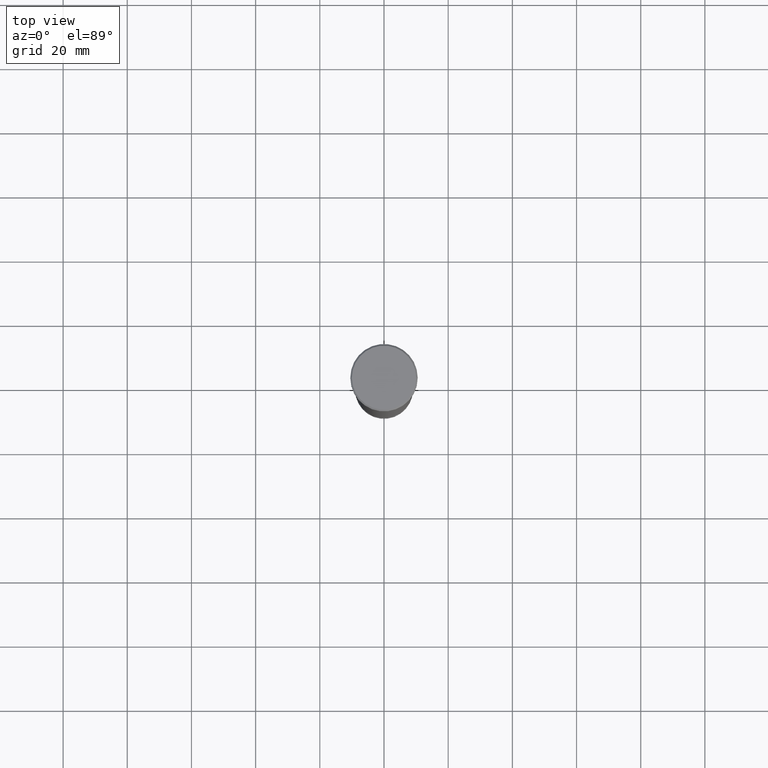
[diagram: clean part render]
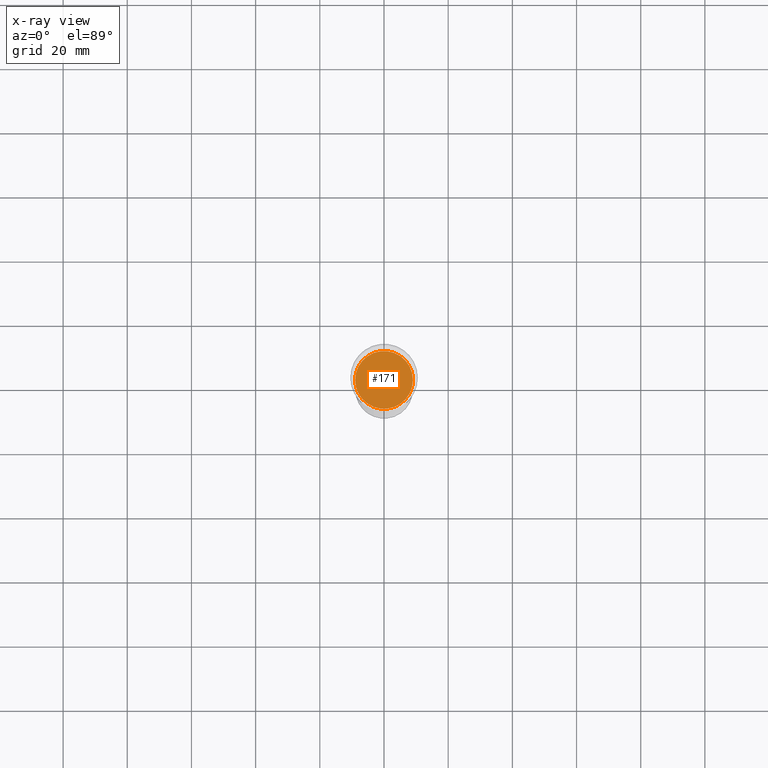
[diagram: x-ray — body ghosted, one internal face saturated and labeled with its STEP entity id]
A machine part, top view, then the same camera in x-ray: the body is ghosted and one INTERNAL B-rep face — a face not visible from any outside direction — is saturated and labeled: STEP entity #171.
In plain terms, the highlighted planar face has unit normal (0, 0, -1).
Its self-contained STEP definition (entity closure, byte-faithful):
#48 = CIRCLE ( 'NONE', #698, 9.000000000000000000 ) ;
#61 = CARTESIAN_POINT ( 'NONE',  ( 0.000000000000000000, 0.000000000000000000, -41.99999999999999289 ) ) ;
#87 = EDGE_LOOP ( 'NONE', ( #927, #334 ) ) ;
#88 = CARTESIAN_POINT ( 'NONE',  ( 9.000000000000000000, 0.000000000000000000, -41.99999999999999289 ) ) ;
#141 = DIRECTION ( 'NONE',  ( 0.000000000000000000, 0.000000000000000000, -1.000000000000000000 ) ) ;
#171 = ADVANCED_FACE ( 'NONE', ( #413 ), #308, .T. ) ;
#255 = VERTEX_POINT ( 'NONE', #664 ) ;
#308 = PLANE ( 'NONE',  #403 ) ;
#334 = ORIENTED_EDGE ( 'NONE', *, *, #532, .T. ) ;
#403 = AXIS2_PLACEMENT_3D ( 'NONE', #828, #569, #759 ) ;
#413 = FACE_OUTER_BOUND ( 'NONE', #87, .T. ) ;
#420 = VERTEX_POINT ( 'NONE', #88 ) ;
#532 = EDGE_CURVE ( 'NONE', #255, #420, #824, .T. ) ;
#569 = DIRECTION ( 'NONE',  ( 0.000000000000000000, 0.000000000000000000, -1.000000000000000000 ) ) ;
#664 = CARTESIAN_POINT ( 'NONE',  ( -9.000000000000000000, 1.102182119232617517E-15, -41.99999999999999289 ) ) ;
#695 = DIRECTION ( 'NONE',  ( -1.000000000000000000, 0.000000000000000000, 0.000000000000000000 ) ) ;
#698 = AXIS2_PLACEMENT_3D ( 'NONE', #765, #948, #695 ) ;
#759 = DIRECTION ( 'NONE',  ( -1.000000000000000000, 0.000000000000000000, -0.000000000000000000 ) ) ;
#765 = CARTESIAN_POINT ( 'NONE',  ( 0.000000000000000000, 0.000000000000000000, -41.99999999999999289 ) ) ;
#824 = CIRCLE ( 'NONE', #918, 9.000000000000000000 ) ;
#828 = CARTESIAN_POINT ( 'NONE',  ( 0.000000000000000000, 0.000000000000000000, -41.99999999999999289 ) ) ;
#918 = AXIS2_PLACEMENT_3D ( 'NONE', #61, #141, #1029 ) ;
#927 = ORIENTED_EDGE ( 'NONE', *, *, #1123, .T. ) ;
#948 = DIRECTION ( 'NONE',  ( 0.000000000000000000, 0.000000000000000000, -1.000000000000000000 ) ) ;
#1029 = DIRECTION ( 'NONE',  ( -1.000000000000000000, 0.000000000000000000, 0.000000000000000000 ) ) ;
#1123 = EDGE_CURVE ( 'NONE', #420, #255, #48, .T. ) ;